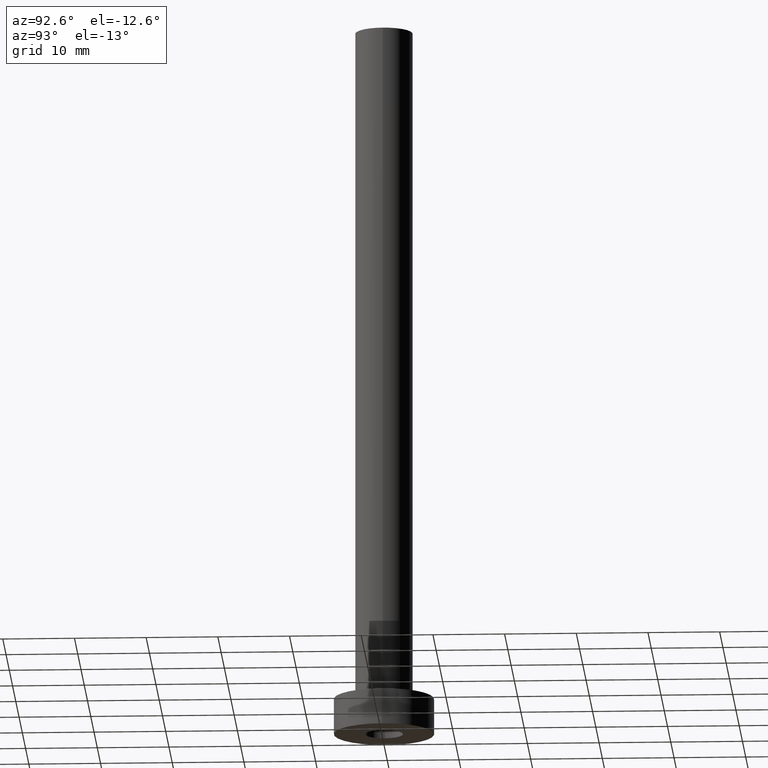
[diagram: clean part render]
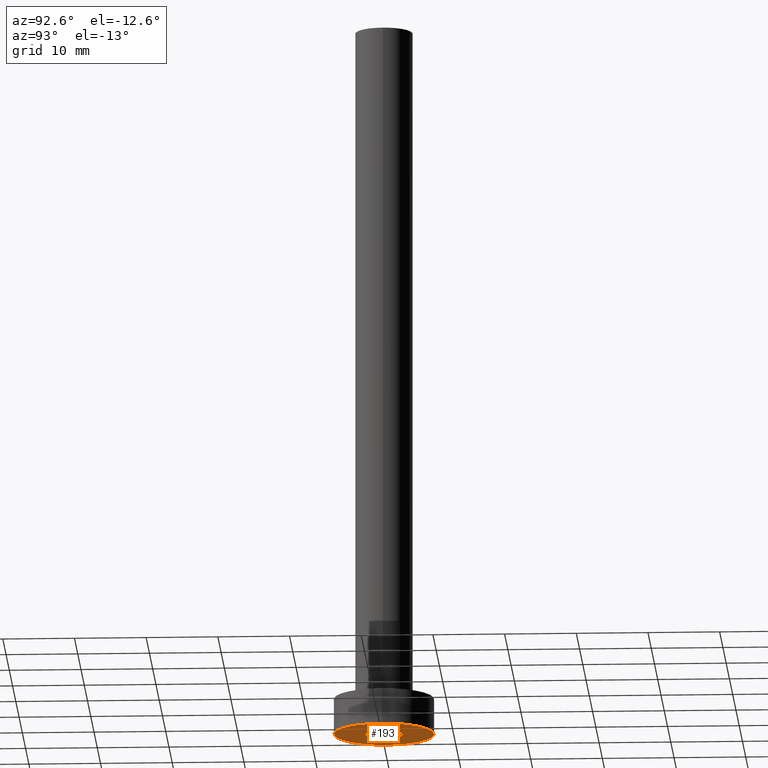
[diagram: same view with one face highlighted and labeled with its STEP entity id]
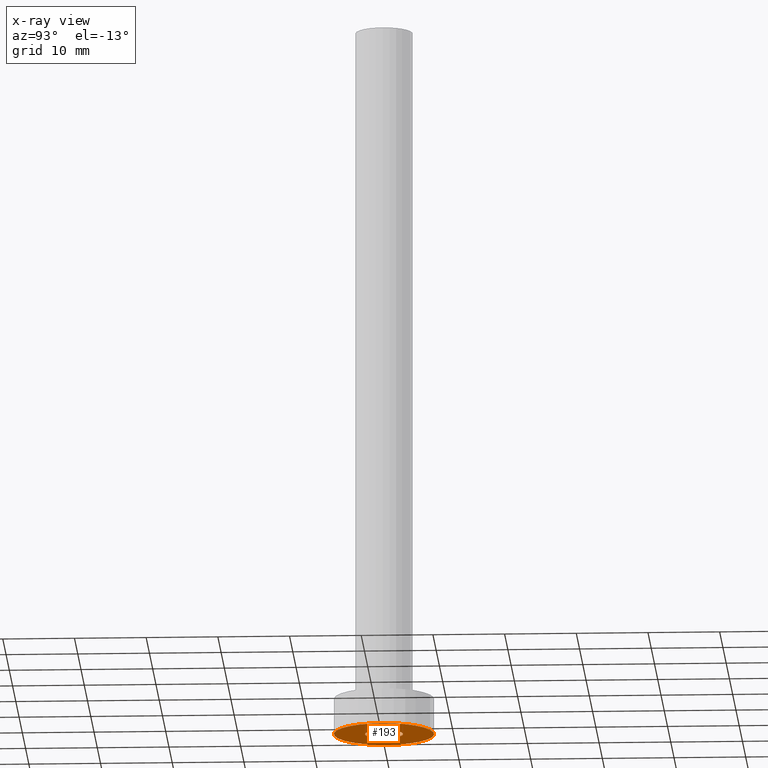
[diagram: x-ray of the same camera — body ghosted, the highlighted face saturated]
A machine part, auxiliary view. The second image highlights one B-rep face of the part: STEP entity #193.
The next image is the same camera in x-ray: the body ghosted, the highlighted face saturated — about 0% of this face is hidden behind the body in this view.
In plain terms, the highlighted planar face has unit normal (0, 0, 1).
Its self-contained STEP definition (entity closure, byte-faithful):
#19 = DIRECTION ( 'NONE',  ( -0.000000000000000000, -0.000000000000000000, -1.000000000000000000 ) ) ;
#29 = ORIENTED_EDGE ( 'NONE', *, *, #332, .F. ) ;
#30 = VERTEX_POINT ( 'NONE', #307 ) ;
#34 = DIRECTION ( 'NONE',  ( 0.000000000000000000, 0.000000000000000000, 1.000000000000000000 ) ) ;
#59 = AXIS2_PLACEMENT_3D ( 'NONE', #136, #322, #182 ) ;
#88 = DIRECTION ( 'NONE',  ( -0.000000000000000000, -0.000000000000000000, -1.000000000000000000 ) ) ;
#93 = DIRECTION ( 'NONE',  ( 1.000000000000000000, 0.000000000000000000, 0.000000000000000000 ) ) ;
#102 = ORIENTED_EDGE ( 'NONE', *, *, #223, .F. ) ;
#136 = CARTESIAN_POINT ( 'NONE',  ( 0.000000000000000000, 0.000000000000000000, 0.000000000000000000 ) ) ;
#152 = ORIENTED_EDGE ( 'NONE', *, *, #377, .F. ) ;
#154 = AXIS2_PLACEMENT_3D ( 'NONE', #353, #34, #184 ) ;
#166 = DIRECTION ( 'NONE',  ( 1.000000000000000000, 0.000000000000000000, 0.000000000000000000 ) ) ;
#175 = CARTESIAN_POINT ( 'NONE',  ( -7.000000000000000000, 0.000000000000000000, 0.000000000000000000 ) ) ;
#182 = DIRECTION ( 'NONE',  ( 1.000000000000000000, 0.000000000000000000, 0.000000000000000000 ) ) ;
#184 = DIRECTION ( 'NONE',  ( 1.000000000000000000, 0.000000000000000000, -0.000000000000000000 ) ) ;
#193 = ADVANCED_FACE ( 'NONE', ( #337, #216 ), #423, .F. ) ;
#200 = CARTESIAN_POINT ( 'NONE',  ( 0.000000000000000000, 0.000000000000000000, 0.000000000000000000 ) ) ;
#202 = CIRCLE ( 'NONE', #59, 7.000000000000000000 ) ;
#211 = AXIS2_PLACEMENT_3D ( 'NONE', #200, #338, #352 ) ;
#216 = FACE_OUTER_BOUND ( 'NONE', #260, .T. ) ;
#223 = EDGE_CURVE ( 'NONE', #30, #331, #449, .T. ) ;
#225 = EDGE_LOOP ( 'NONE', ( #29, #102 ) ) ;
#252 = ORIENTED_EDGE ( 'NONE', *, *, #404, .F. ) ;
#260 = EDGE_LOOP ( 'NONE', ( #252, #152 ) ) ;
#261 = AXIS2_PLACEMENT_3D ( 'NONE', #409, #88, #166 ) ;
#282 = CARTESIAN_POINT ( 'NONE',  ( 0.000000000000000000, 0.000000000000000000, 0.000000000000000000 ) ) ;
#307 = CARTESIAN_POINT ( 'NONE',  ( 2.649999999999999911, 3.245314017740485962E-16, 0.000000000000000000 ) ) ;
#322 = DIRECTION ( 'NONE',  ( 0.000000000000000000, 0.000000000000000000, 1.000000000000000000 ) ) ;
#329 = CIRCLE ( 'NONE', #334, 2.649999999999999911 ) ;
#331 = VERTEX_POINT ( 'NONE', #441 ) ;
#332 = EDGE_CURVE ( 'NONE', #331, #30, #329, .T. ) ;
#334 = AXIS2_PLACEMENT_3D ( 'NONE', #282, #19, #93 ) ;
#337 = FACE_BOUND ( 'NONE', #225, .T. ) ;
#338 = DIRECTION ( 'NONE',  ( 0.000000000000000000, 0.000000000000000000, 1.000000000000000000 ) ) ;
#352 = DIRECTION ( 'NONE',  ( 1.000000000000000000, 0.000000000000000000, 0.000000000000000000 ) ) ;
#353 = CARTESIAN_POINT ( 'NONE',  ( 0.000000000000000000, 0.000000000000000000, 0.000000000000000000 ) ) ;
#365 = CARTESIAN_POINT ( 'NONE',  ( 7.000000000000000000, 8.572527594031473190E-16, 0.000000000000000000 ) ) ;
#368 = VERTEX_POINT ( 'NONE', #175 ) ;
#377 = EDGE_CURVE ( 'NONE', #454, #368, #408, .T. ) ;
#404 = EDGE_CURVE ( 'NONE', #368, #454, #202, .T. ) ;
#408 = CIRCLE ( 'NONE', #211, 7.000000000000000000 ) ;
#409 = CARTESIAN_POINT ( 'NONE',  ( 0.000000000000000000, 0.000000000000000000, 0.000000000000000000 ) ) ;
#423 = PLANE ( 'NONE',  #154 ) ;
#441 = CARTESIAN_POINT ( 'NONE',  ( -2.649999999999999911, 0.000000000000000000, 0.000000000000000000 ) ) ;
#449 = CIRCLE ( 'NONE', #261, 2.649999999999999911 ) ;
#454 = VERTEX_POINT ( 'NONE', #365 ) ;